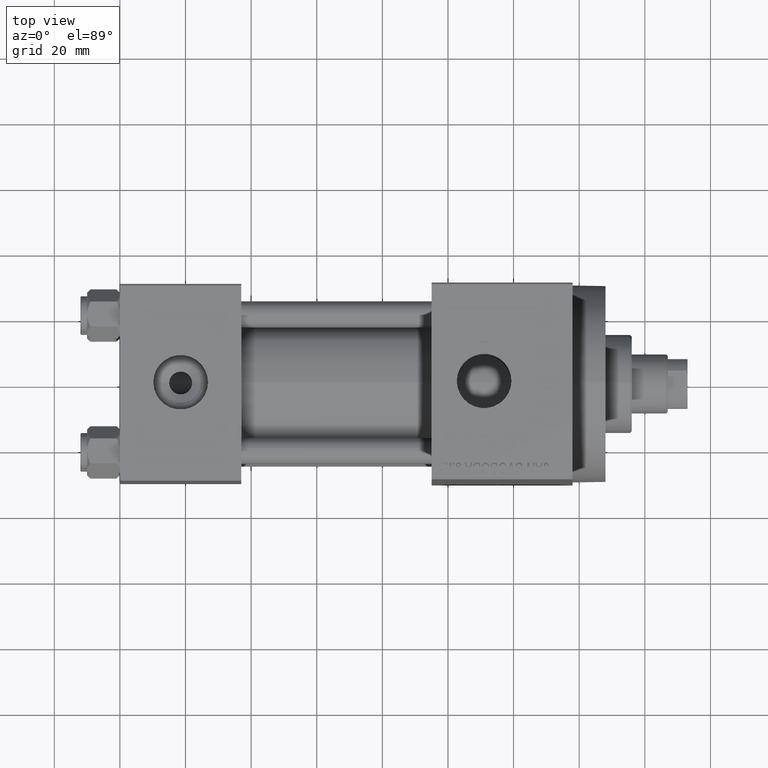
[diagram: clean part render]
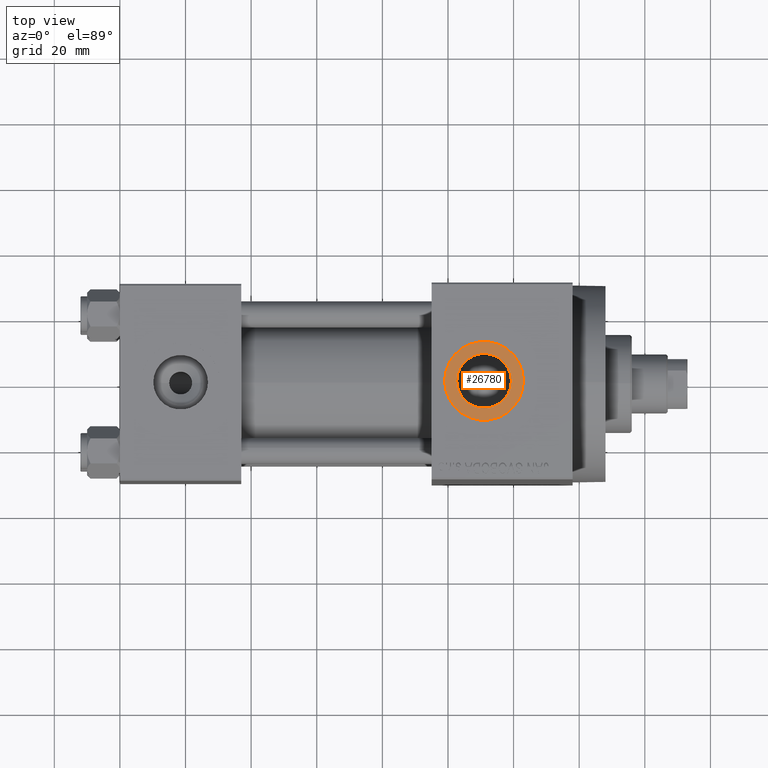
[diagram: same view with one face highlighted and labeled with its STEP entity id]
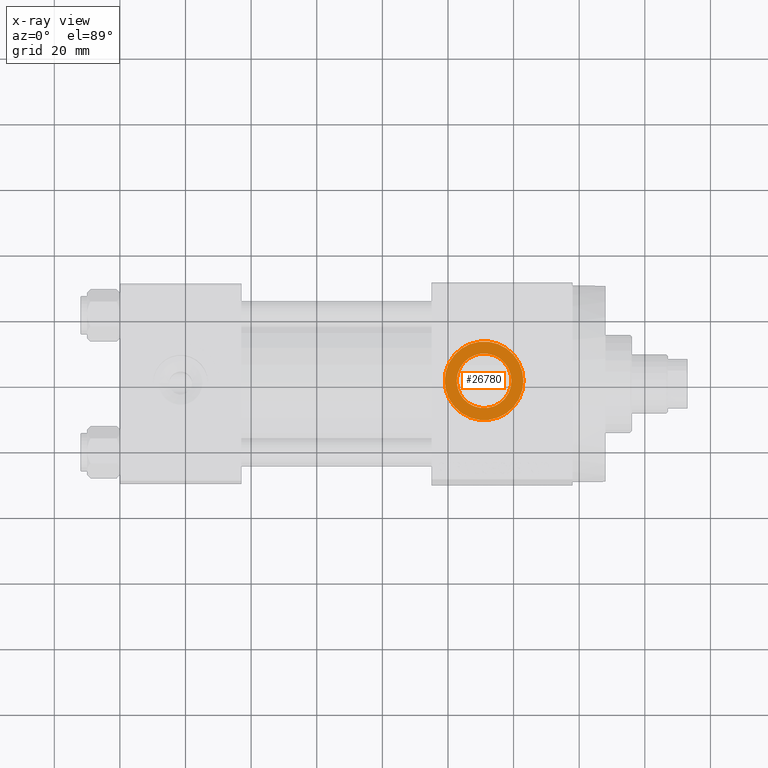
[diagram: x-ray of the same camera — body ghosted, the highlighted face saturated]
A machine part, top view. The second image highlights one B-rep face of the part: STEP entity #26780.
The next image is the same camera in x-ray: the body ghosted, the highlighted face saturated — about 0% of this face is hidden behind the body in this view.
In plain terms, the highlighted planar face has unit normal (0, 0, 1).
Its self-contained STEP definition (entity closure, byte-faithful):
#526 = AXIS2_PLACEMENT_3D ( 'NONE', #39370, #21227, #20987 ) ;
#2688 = CARTESIAN_POINT ( 'NONE',  ( 111.0000000000000000, 6.302828629382399373E-15, 54.29999999999999716 ) ) ;
#2911 = EDGE_LOOP ( 'NONE', ( #16235, #30693 ) ) ;
#3721 = DIRECTION ( 'NONE',  ( 0.000000000000000000, 0.000000000000000000, 1.000000000000000000 ) ) ;
#4098 = ORIENTED_EDGE ( 'NONE', *, *, #32715, .T. ) ;
#8385 = CARTESIAN_POINT ( 'NONE',  ( 111.0000000000000000, 6.302828629382400162E-15, 54.29999999999999716 ) ) ;
#9607 = AXIS2_PLACEMENT_3D ( 'NONE', #8385, #22728, #22962 ) ;
#11567 = ORIENTED_EDGE ( 'NONE', *, *, #30823, .T. ) ;
#11582 = PLANE ( 'NONE',  #46085 ) ;
#14032 = DIRECTION ( 'NONE',  ( 1.000000000000000000, 0.000000000000000000, 0.000000000000000000 ) ) ;
#14261 = CARTESIAN_POINT ( 'NONE',  ( 111.0000000000000000, 6.302828629382399373E-15, 54.29999999999999716 ) ) ;
#16235 = ORIENTED_EDGE ( 'NONE', *, *, #26270, .T. ) ;
#16766 = VERTEX_POINT ( 'NONE', #45780 ) ;
#17155 = VERTEX_POINT ( 'NONE', #19012 ) ;
#19012 = CARTESIAN_POINT ( 'NONE',  ( 99.00000000000000000, 7.772404788359221939E-15, 54.29999999999999716 ) ) ;
#20987 = DIRECTION ( 'NONE',  ( 1.000000000000000000, 0.000000000000000000, 0.000000000000000000 ) ) ;
#21099 = CIRCLE ( 'NONE', #526, 8.330000000000003624 ) ;
#21227 = DIRECTION ( 'NONE',  ( -0.000000000000000000, -0.000000000000000000, -1.000000000000000000 ) ) ;
#22728 = DIRECTION ( 'NONE',  ( -0.000000000000000000, -0.000000000000000000, -1.000000000000000000 ) ) ;
#22962 = DIRECTION ( 'NONE',  ( 1.000000000000000000, 0.000000000000000000, 0.000000000000000000 ) ) ;
#24793 = DIRECTION ( 'NONE',  ( 0.000000000000000000, 0.000000000000000000, 1.000000000000000000 ) ) ;
#26166 = CARTESIAN_POINT ( 'NONE',  ( 111.0000000000000000, 6.302828629382399373E-15, 54.29999999999999716 ) ) ;
#26270 = EDGE_CURVE ( 'NONE', #32931, #17155, #42224, .T. ) ;
#26334 = AXIS2_PLACEMENT_3D ( 'NONE', #14261, #24793, #14032 ) ;
#26599 = AXIS2_PLACEMENT_3D ( 'NONE', #2688, #28491, #43035 ) ;
#26780 = ADVANCED_FACE ( 'NONE', ( #44527, #29738 ), #11582, .T. ) ;
#28491 = DIRECTION ( 'NONE',  ( 0.000000000000000000, 0.000000000000000000, 1.000000000000000000 ) ) ;
#29738 = FACE_OUTER_BOUND ( 'NONE', #2911, .T. ) ;
#30204 = CIRCLE ( 'NONE', #9607, 8.330000000000003624 ) ;
#30693 = ORIENTED_EDGE ( 'NONE', *, *, #37625, .T. ) ;
#30823 = EDGE_CURVE ( 'NONE', #16766, #45424, #30204, .T. ) ;
#30943 = EDGE_LOOP ( 'NONE', ( #11567, #4098 ) ) ;
#32715 = EDGE_CURVE ( 'NONE', #45424, #16766, #21099, .T. ) ;
#32931 = VERTEX_POINT ( 'NONE', #46497 ) ;
#35753 = CIRCLE ( 'NONE', #26599, 11.99999999999999645 ) ;
#37625 = EDGE_CURVE ( 'NONE', #17155, #32931, #35753, .T. ) ;
#39370 = CARTESIAN_POINT ( 'NONE',  ( 111.0000000000000000, 6.302828629382400162E-15, 54.29999999999999716 ) ) ;
#40734 = CARTESIAN_POINT ( 'NONE',  ( 119.3300000000000125, 7.322959413072145713E-15, 54.29999999999999716 ) ) ;
#40939 = DIRECTION ( 'NONE',  ( 1.000000000000000000, 0.000000000000000000, -0.000000000000000000 ) ) ;
#42224 = CIRCLE ( 'NONE', #26334, 11.99999999999999645 ) ;
#43035 = DIRECTION ( 'NONE',  ( 1.000000000000000000, 0.000000000000000000, 0.000000000000000000 ) ) ;
#44527 = FACE_BOUND ( 'NONE', #30943, .T. ) ;
#45424 = VERTEX_POINT ( 'NONE', #40734 ) ;
#45780 = CARTESIAN_POINT ( 'NONE',  ( 102.6700000000000017, 6.302828629382400162E-15, 54.29999999999999716 ) ) ;
#46085 = AXIS2_PLACEMENT_3D ( 'NONE', #26166, #3721, #40939 ) ;
#46497 = CARTESIAN_POINT ( 'NONE',  ( 123.0000000000000000, 6.302828629382399373E-15, 54.29999999999999716 ) ) ;